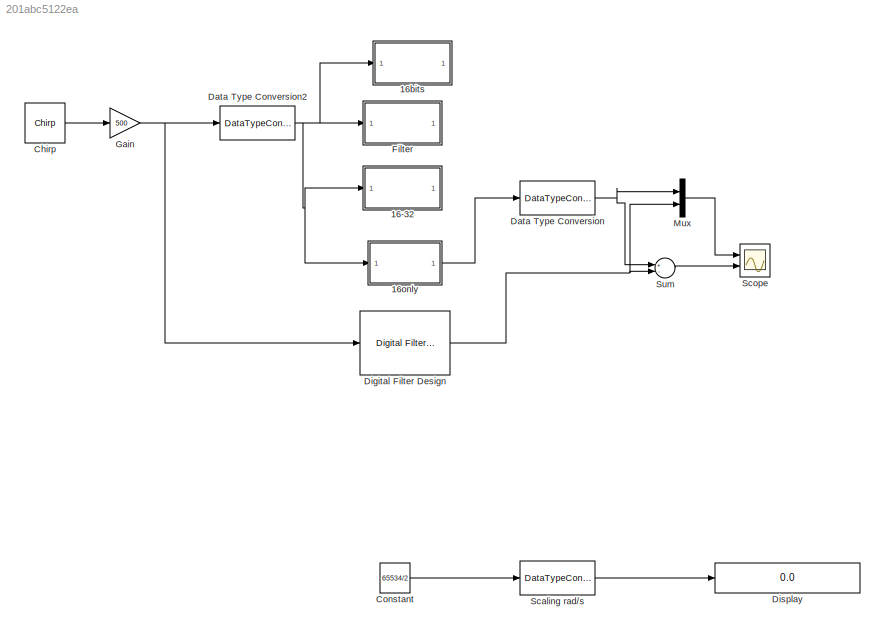
MODEL slx_201abc5122ea
KIND model
CONFIG AbsTol = auto
CONFIG EnableMultiTasking = on
CONFIG FixedStep = auto
CONFIG MaxStep = auto
CONFIG MinStep = auto
CONFIG RelTol = 1e-3
CONFIG SampleTimeConstraint = Unconstrained
CONFIG Solver = FixedStepAuto
CONFIG SolverName = FixedStepAuto
CONFIG StartTime = 0.0
CONFIG StopTime = 60
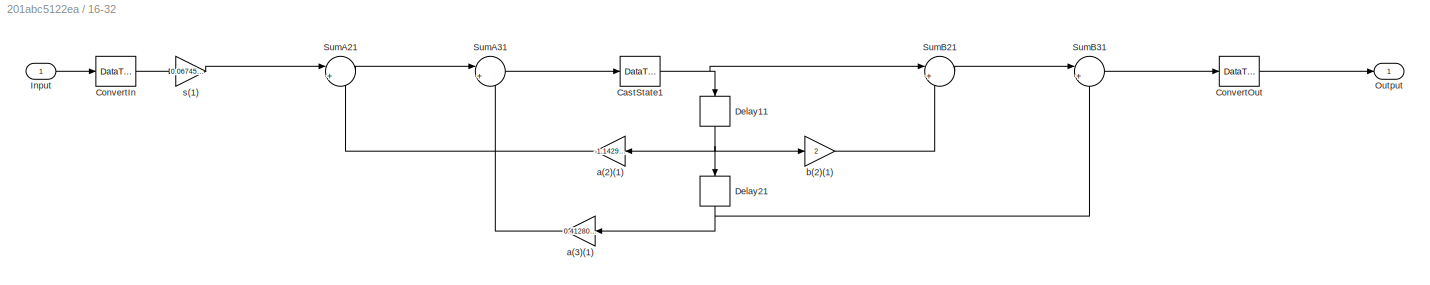
BLOCK [SubSystem] 16-32 
  Commented = on
  ErrorFcn = dspFilterRealizedInBasicElemsAlgLoopErrFcnCallback
  Ports = [1, 1]
  RequestExecContextInheritance = off
  Tag = FilterWizardSubSystem
  TreatAsAtomicUnit = on
  UserDataPersistent = on
  Variant = off
BLOCK [DataTypeConversion] 16-32 /CastState1
  OutDataTypeStr = fixdt(1,16,7)
  RndMeth = Floor
  SaturateOnIntegerOverflow = off
BLOCK [DataTypeConversion] 16-32 /ConvertIn
  OutDataTypeStr = fixdt(1,16,5)
  RndMeth = Nearest
BLOCK [DataTypeConversion] 16-32 /ConvertOut
  OutDataTypeStr = fixdt(1,16,5)
  RndMeth = Floor
  SaturateOnIntegerOverflow = off
BLOCK [Delay] 16-32 /Delay11
  DelayLength = 1
  InitialCondition = 0
  InputPortMap = u0
  Ports = [1, 1]
BLOCK [Delay] 16-32 /Delay21
  DelayLength = 1
  InitialCondition = 0
  InputPortMap = u0
  Ports = [1, 1]
BLOCK [Inport] 16-32 /Input
  IconDisplay = Port number
BLOCK [Outport] 16-32 /Output
  IconDisplay = Port number
BLOCK [Sum] 16-32 /SumA21
  AccumDataTypeStr = fixdt(1,34,25)
  IconShape = round
  InputSameDT = off
  Inputs = |+-
  OutDataTypeStr = fixdt(1,16,7)
  Ports = [2, 1]
  SaturateOnIntegerOverflow = off
BLOCK [Sum] 16-32 /SumA31
  AccumDataTypeStr = fixdt(1,34,25)
  IconShape = round
  InputSameDT = off
  Inputs = |+-
  OutDataTypeStr = fixdt(1,16,7)
  Ports = [2, 1]
  SaturateOnIntegerOverflow = off
BLOCK [Sum] 16-32 /SumB21
  AccumDataTypeStr = fixdt(1,34,24)
  IconShape = round
  InputSameDT = off
  Inputs = |++
  OutDataTypeStr = fixdt(1,16,6)
  Ports = [2, 1]
  SaturateOnIntegerOverflow = off
BLOCK [Sum] 16-32 /SumB31
  AccumDataTypeStr = fixdt(1,34,23)
  IconShape = round
  InputSameDT = off
  Inputs = |++
  OutDataTypeStr = fixdt(1,16,5)
  Ports = [2, 1]
  SaturateOnIntegerOverflow = off
BLOCK [Gain] 16-32 /a(2)(1)
  Gain = -1.14298050253990113
  OutDataTypeStr = fixdt(1,32,23)
  ParamDataTypeStr = fixdt(1,16,14)
  SaturateOnIntegerOverflow = off
BLOCK [Gain] 16-32 /a(3)(1)
  Gain = 0.412801598096188771
  OutDataTypeStr = fixdt(1,32,25)
  ParamDataTypeStr = fixdt(0,16,17)
  SaturateOnIntegerOverflow = off
BLOCK [Gain] 16-32 /b(2)(1)
  Gain = 2
  OutDataTypeStr = fixdt(1,32,22)
  ParamDataTypeStr = fixdt(0,16,14)
  SaturateOnIntegerOverflow = off
BLOCK [Gain] 16-32 /s(1)
  Gain = 0.0674552738890718956
  OutDataTypeStr = fixdt(1,16,9)
  ParamDataTypeStr = fixdt(0,16,19)
  SaturateOnIntegerOverflow = off
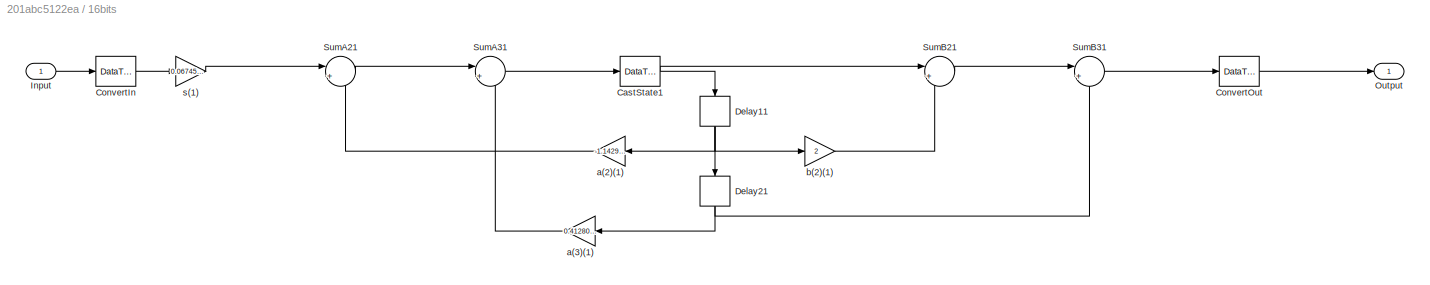
BLOCK [SubSystem] 16bits
  ErrorFcn = dspFilterRealizedInBasicElemsAlgLoopErrFcnCallback
  Ports = [1, 1]
  RequestExecContextInheritance = off
  Tag = FilterWizardSubSystem
  UserDataPersistent = on
  Variant = off
BLOCK [DataTypeConversion] 16bits/CastState1
  OutDataTypeStr = fixdt(1,16,6)
  RndMeth = Floor
  SaturateOnIntegerOverflow = off
BLOCK [DataTypeConversion] 16bits/ConvertIn
  OutDataTypeStr = fixdt(1,16,5)
  RndMeth = Nearest
BLOCK [DataTypeConversion] 16bits/ConvertOut
  OutDataTypeStr = fixdt(1,16,4)
  RndMeth = Floor
  SaturateOnIntegerOverflow = off
BLOCK [Delay] 16bits/Delay11
  DelayLength = 1
  InitialCondition = 0
  InputPortMap = u0
  Ports = [1, 1]
BLOCK [Delay] 16bits/Delay21
  DelayLength = 1
  InitialCondition = 0
  InputPortMap = u0
  Ports = [1, 1]
BLOCK [Inport] 16bits/Input
  IconDisplay = Port number
BLOCK [Outport] 16bits/Output
  IconDisplay = Port number
BLOCK [Sum] 16bits/SumA21
  AccumDataTypeStr = fixdt(1,34,24)
  IconShape = round
  InputSameDT = off
  Inputs = |+-
  OutDataTypeStr = fixdt(1,16,6)
  Ports = [2, 1]
  SaturateOnIntegerOverflow = off
BLOCK [Sum] 16bits/SumA31
  AccumDataTypeStr = fixdt(1,34,24)
  IconShape = round
  InputSameDT = off
  Inputs = |+-
  OutDataTypeStr = fixdt(1,16,6)
  Ports = [2, 1]
  SaturateOnIntegerOverflow = off
BLOCK [Sum] 16bits/SumB21
  AccumDataTypeStr = fixdt(1,34,23)
  IconShape = round
  InputSameDT = off
  Inputs = |++
  OutDataTypeStr = fixdt(1,16,5)
  Ports = [2, 1]
  SaturateOnIntegerOverflow = off
BLOCK [Sum] 16bits/SumB31
  AccumDataTypeStr = fixdt(1,34,22)
  IconShape = round
  InputSameDT = off
  Inputs = |++
  OutDataTypeStr = fixdt(1,16,4)
  Ports = [2, 1]
  SaturateOnIntegerOverflow = off
BLOCK [Gain] 16bits/a(2)(1)
  Gain = -1.14298050253990113
  OutDataTypeStr = fixdt(1,32,22)
  ParamDataTypeStr = fixdt(1,16,14)
  SaturateOnIntegerOverflow = off
BLOCK [Gain] 16bits/a(3)(1)
  Gain = 0.412801598096188771
  OutDataTypeStr = fixdt(1,32,24)
  ParamDataTypeStr = fixdt(0,16,17)
  SaturateOnIntegerOverflow = off
BLOCK [Gain] 16bits/b(2)(1)
  Gain = 2
  OutDataTypeStr = fixdt(1,32,21)
  ParamDataTypeStr = fixdt(0,16,14)
  SaturateOnIntegerOverflow = off
BLOCK [Gain] 16bits/s(1)
  Gain = 0.0674552738890718956
  OutDataTypeStr = fixdt(1,16,8)
  ParamDataTypeStr = fixdt(0,16,19)
  SaturateOnIntegerOverflow = off
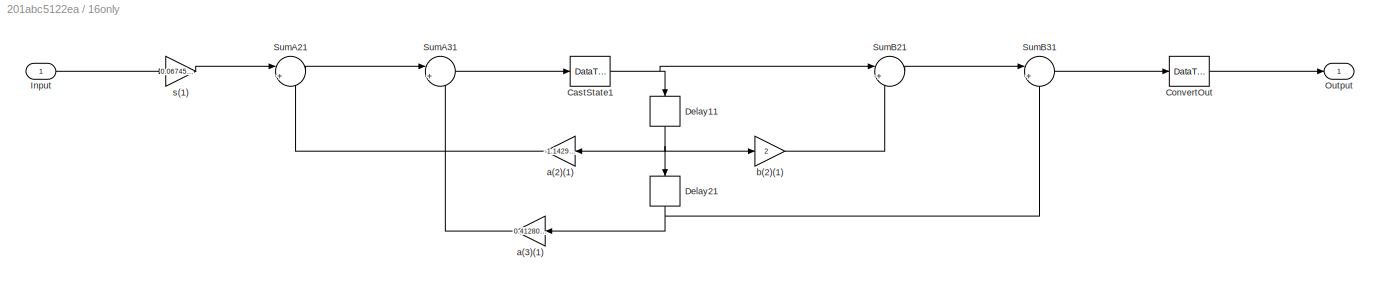
BLOCK [SubSystem] 16only 
  ErrorFcn = dspFilterRealizedInBasicElemsAlgLoopErrFcnCallback
  Ports = [1, 1]
  RequestExecContextInheritance = off
  Tag = FilterWizardSubSystem
  UserDataPersistent = on
  Variant = off
BLOCK [DataTypeConversion] 16only /CastState1
  OutDataTypeStr = fixdt(1,16,6)
  RndMeth = Floor
  SaturateOnIntegerOverflow = off
BLOCK [DataTypeConversion] 16only /ConvertOut
  OutDataTypeStr = fixdt(1,16,4)
  RndMeth = Floor
  SaturateOnIntegerOverflow = off
BLOCK [Delay] 16only /Delay11
  DelayLength = 1
  InitialCondition = 0
  InputPortMap = u0
  Ports = [1, 1]
BLOCK [Delay] 16only /Delay21
  DelayLength = 1
  InitialCondition = 0
  InputPortMap = u0
  Ports = [1, 1]
BLOCK [Inport] 16only /Input
  IconDisplay = Port number
BLOCK [Outport] 16only /Output
  IconDisplay = Port number
BLOCK [Sum] 16only /SumA21
  AccumDataTypeStr = fixdt(1,16,6)
  IconShape = round
  InputSameDT = off
  Inputs = |+-
  OutDataTypeStr = fixdt(1,16,6)
  Ports = [2, 1]
  SaturateOnIntegerOverflow = off
BLOCK [Sum] 16only /SumA31
  AccumDataTypeStr = fixdt(1,16,6)
  IconShape = round
  InputSameDT = off
  Inputs = |+-
  OutDataTypeStr = fixdt(1,16,6)
  Ports = [2, 1]
  SaturateOnIntegerOverflow = off
BLOCK [Sum] 16only /SumB21
  AccumDataTypeStr = fixdt(1,16,5)
  IconShape = round
  InputSameDT = off
  Inputs = |++
  OutDataTypeStr = fixdt(1,16,5)
  Ports = [2, 1]
  SaturateOnIntegerOverflow = off
BLOCK [Sum] 16only /SumB31
  AccumDataTypeStr = fixdt(1,16,4)
  IconShape = round
  InputSameDT = off
  Inputs = |++
  OutDataTypeStr = fixdt(1,16,4)
  Ports = [2, 1]
  SaturateOnIntegerOverflow = off
BLOCK [Gain] 16only /a(2)(1)
  Gain = -1.14298050253990113
  OutDataTypeStr = fixdt(1,16,6)
  ParamDataTypeStr = fixdt(1,16,14)
  SaturateOnIntegerOverflow = off
BLOCK [Gain] 16only /a(3)(1)
  Gain = 0.412801598096188771
  OutDataTypeStr = fixdt(1,16,8)
  ParamDataTypeStr = fixdt(0,16,17)
  SaturateOnIntegerOverflow = off
BLOCK [Gain] 16only /b(2)(1)
  Gain = 2
  OutDataTypeStr = fixdt(1,16,5)
  ParamDataTypeStr = fixdt(0,16,14)
  SaturateOnIntegerOverflow = off
BLOCK [Gain] 16only /s(1)
  Gain = 0.0674552738890718956
  OutDataTypeStr = fixdt(1,16,8)
  ParamDataTypeStr = fixdt(0,16,19)
  SaturateOnIntegerOverflow = off
BLOCK [Reference] Chirp  REF=dspsrcs4/Chirp
  Ports = [0, 1]
  SourceBlock = dspsrcs4/Chirp
  SourceProductBaseCode = DS
  SourceProductName = DSP System Toolbox
  SourceType = Chirp
BLOCK [Constant] Constant
  OutDataTypeStr = int16
  Value = 65534/2
BLOCK [DataTypeConversion] Data Type Conversion
  OutDataTypeStr = double
  RndMeth = Floor
  SaturateOnIntegerOverflow = off
BLOCK [DataTypeConversion] Data Type Conversion2
  OutDataTypeStr = fixdt(1,16,5)
  OutMax = [pi]
  OutMin = [0]
  RndMeth = Floor
  SaturateOnIntegerOverflow = off
BLOCK [Reference] Digital Filter Design  REF=dsparch4/Digital
Filter Design
  Ports = [1, 1]
  SourceBlock = dsparch4/Digital\nFilter Design
  SourceProductBaseCode = DS
  SourceProductName = DSP System Toolbox
  SourceType = Digital Filter Design
  UserDataPersistent = on
BLOCK [Display] Display
  Decimation = 1
  Ports = [1]
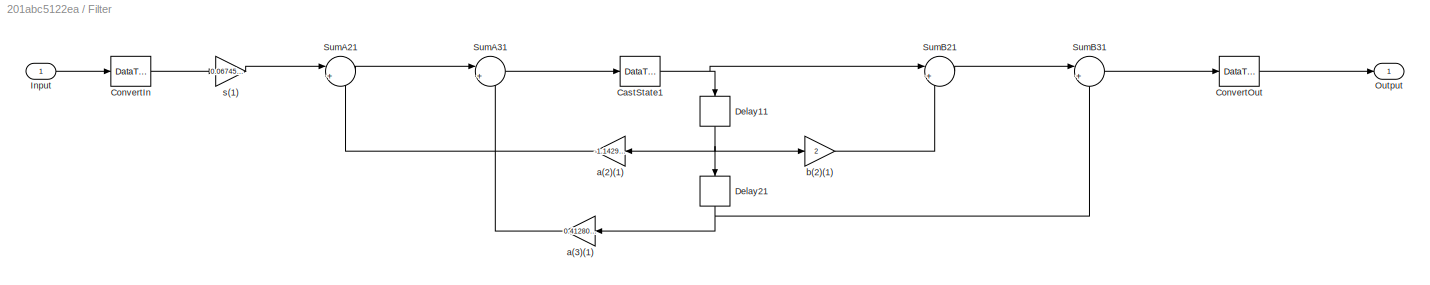
BLOCK [SubSystem] Filter
  Commented = on
  ErrorFcn = dspFilterRealizedInBasicElemsAlgLoopErrFcnCallback
  Ports = [1, 1]
  RequestExecContextInheritance = off
  Tag = FilterWizardSubSystem
  UserDataPersistent = on
  Variant = off
BLOCK [DataTypeConversion] Filter/CastState1
  OutDataTypeStr = fixdt(1,16,1)
  RndMeth = Floor
  SaturateOnIntegerOverflow = off
BLOCK [DataTypeConversion] Filter/ConvertIn
  OutDataTypeStr = fixdt(1,16,6)
  RndMeth = Nearest
BLOCK [DataTypeConversion] Filter/ConvertOut
  OutDataTypeStr = fixdt(1,16,5)
  RndMeth = Floor
  SaturateOnIntegerOverflow = off
BLOCK [Delay] Filter/Delay11
  DelayLength = 1
  InitialCondition = 0
  InputPortMap = u0
  Ports = [1, 1]
BLOCK [Delay] Filter/Delay21
  DelayLength = 1
  InitialCondition = 0
  InputPortMap = u0
  Ports = [1, 1]
BLOCK [Inport] Filter/Input
  IconDisplay = Port number
BLOCK [Outport] Filter/Output
  IconDisplay = Port number
BLOCK [Sum] Filter/SumA21
  AccumDataTypeStr = fixdt(1,34,16)
  IconShape = round
  InputSameDT = off
  Inputs = |+-
  OutDataTypeStr = fixdt(1,32,13)
  Ports = [2, 1]
  SaturateOnIntegerOverflow = off
BLOCK [Sum] Filter/SumA31
  AccumDataTypeStr = fixdt(1,34,16)
  IconShape = round
  InputSameDT = off
  Inputs = |+-
  OutDataTypeStr = fixdt(1,32,13)
  Ports = [2, 1]
  SaturateOnIntegerOverflow = off
BLOCK [Sum] Filter/SumB21
  AccumDataTypeStr = fixdt(1,34,16)
  IconShape = round
  InputSameDT = off
  Inputs = |++
  OutDataTypeStr = fixdt(1,32,12)
  Ports = [2, 1]
  SaturateOnIntegerOverflow = off
BLOCK [Sum] Filter/SumB31
  AccumDataTypeStr = fixdt(1,34,16)
  IconShape = round
  InputSameDT = off
  Inputs = |++
  OutDataTypeStr = fixdt(1,32,12)
  Ports = [2, 1]
  SaturateOnIntegerOverflow = off
BLOCK [Gain] Filter/a(2)(1)
  Gain = -1.14298050253990113
  OutDataTypeStr = fixdt(1,32,15)
  ParamDataTypeStr = fixdt(1,16,14)
  SaturateOnIntegerOverflow = off
BLOCK [Gain] Filter/a(3)(1)
  Gain = 0.412801598096188771
  OutDataTypeStr = fixdt(1,32,15)
  ParamDataTypeStr = fixdt(1,16,14)
  SaturateOnIntegerOverflow = off
BLOCK [Gain] Filter/b(2)(1)
  Gain = 2
  OutDataTypeStr = fixdt(1,32,14)
  ParamDataTypeStr = fixdt(1,16,13)
  SaturateOnIntegerOverflow = off
BLOCK [Gain] Filter/s(1)
  Gain = 0.0674552738890718956
  OutDataTypeStr = fixdt(1,16,7)
  ParamDataTypeStr = fixdt(1,16,18)
  SaturateOnIntegerOverflow = off
BLOCK [Gain] Gain
  Gain = 500
  ParamDataTypeStr = Inherit: Inherit via internal rule
  SaturateOnIntegerOverflow = off
BLOCK [Mux] Mux
  DisplayOption = bar
  Inputs = 2
  Ports = [2, 1]
BLOCK [DataTypeConversion] Scaling rad//s
  ConvertRealWorld = Stored Integer (SI)
  OutDataTypeStr = fixdt(1,16,2*pi/Lignes/TsQEI,0)
  OutMax = [pi]
  OutMin = [0]
  RndMeth = Floor
  SaturateOnIntegerOverflow = off
BLOCK [Scope] Scope
  NumInputPorts = 2
  Ports = [2]
  ScopeSpecificationString = Simulink.scopes.TimeScopeBlockCfg('CurrentConfiguration', extmgr.ConfigurationSet(extmgr.Configuration('Core','General UI',true),extmgr.Configuration('Core','Source UI',true),extmgr.Configuration('Sources','WiredSimulink',true),extmgr.Configuration('Visuals','Time Domain',true,'SerializedDisplays',{struct('MinYLimReal','-508.36913','MaxYLimReal','-252.31109','YLabelReal','','MinYLimMag',' 0.00000'...<+1999ch>
BLOCK [Sum] Sum
  InputSameDT = off
  Inputs = +-
  OutDataTypeStr = fixdt(1,16,4)
  Ports = [2, 1]
  SaturateOnIntegerOverflow = off
NET 16-32 /CastState1:1 -> 16-32 /Delay11:1, 16-32 /SumB21:1
LINE 16-32 /ConvertIn:1 -> 16-32 /s(1):1
LINE 16-32 /ConvertOut:1 -> 16-32 /Output:1
NET 16-32 /Delay11:1 -> 16-32 /Delay21:1, 16-32 /a(2)(1):1, 16-32 /b(2)(1):1
NET 16-32 /Delay21:1 -> 16-32 /SumB31:2, 16-32 /a(3)(1):1
LINE 16-32 /Input:1 -> 16-32 /ConvertIn:1
LINE 16-32 /SumA21:1 -> 16-32 /SumA31:1
LINE 16-32 /SumA31:1 -> 16-32 /CastState1:1
LINE 16-32 /SumB21:1 -> 16-32 /SumB31:1
LINE 16-32 /SumB31:1 -> 16-32 /ConvertOut:1
LINE 16-32 /a(2)(1):1 -> 16-32 /SumA21:2
LINE 16-32 /a(3)(1):1 -> 16-32 /SumA31:2
LINE 16-32 /b(2)(1):1 -> 16-32 /SumB21:2
LINE 16-32 /s(1):1 -> 16-32 /SumA21:1
NET 16bits/CastState1:1 -> 16bits/Delay11:1, 16bits/SumB21:1
LINE 16bits/ConvertIn:1 -> 16bits/s(1):1
LINE 16bits/ConvertOut:1 -> 16bits/Output:1
NET 16bits/Delay11:1 -> 16bits/Delay21:1, 16bits/a(2)(1):1, 16bits/b(2)(1):1
NET 16bits/Delay21:1 -> 16bits/SumB31:2, 16bits/a(3)(1):1
LINE 16bits/Input:1 -> 16bits/ConvertIn:1
LINE 16bits/SumA21:1 -> 16bits/SumA31:1
LINE 16bits/SumA31:1 -> 16bits/CastState1:1
LINE 16bits/SumB21:1 -> 16bits/SumB31:1
LINE 16bits/SumB31:1 -> 16bits/ConvertOut:1
LINE 16bits/a(2)(1):1 -> 16bits/SumA21:2
LINE 16bits/a(3)(1):1 -> 16bits/SumA31:2
LINE 16bits/b(2)(1):1 -> 16bits/SumB21:2
LINE 16bits/s(1):1 -> 16bits/SumA21:1
NET 16only /CastState1:1 -> 16only /Delay11:1, 16only /SumB21:1
LINE 16only /ConvertOut:1 -> 16only /Output:1
NET 16only /Delay11:1 -> 16only /Delay21:1, 16only /a(2)(1):1, 16only /b(2)(1):1
NET 16only /Delay21:1 -> 16only /SumB31:2, 16only /a(3)(1):1
LINE 16only /Input:1 -> 16only /s(1):1
LINE 16only /SumA21:1 -> 16only /SumA31:1
LINE 16only /SumA31:1 -> 16only /CastState1:1
LINE 16only /SumB21:1 -> 16only /SumB31:1
LINE 16only /SumB31:1 -> 16only /ConvertOut:1
LINE 16only /a(2)(1):1 -> 16only /SumA21:2
LINE 16only /a(3)(1):1 -> 16only /SumA31:2
LINE 16only /b(2)(1):1 -> 16only /SumB21:2
LINE 16only /s(1):1 -> 16only /SumA21:1
LINE 16only :1 -> Data Type Conversion:1
LINE Chirp:1 -> Gain:1
LINE Constant:1 -> Scaling rad//s:1
NET Data Type Conversion2:1 -> 16-32 :1, 16bits:1, 16only :1, Filter:1
NET Data Type Conversion:1 -> Mux:1, Sum:1
NET Digital Filter Design:1 -> Mux:2, Sum:2
NET Filter/CastState1:1 -> Filter/Delay11:1, Filter/SumB21:1
LINE Filter/ConvertIn:1 -> Filter/s(1):1
LINE Filter/ConvertOut:1 -> Filter/Output:1
NET Filter/Delay11:1 -> Filter/Delay21:1, Filter/a(2)(1):1, Filter/b(2)(1):1
NET Filter/Delay21:1 -> Filter/SumB31:2, Filter/a(3)(1):1
LINE Filter/Input:1 -> Filter/ConvertIn:1
LINE Filter/SumA21:1 -> Filter/SumA31:1
LINE Filter/SumA31:1 -> Filter/CastState1:1
LINE Filter/SumB21:1 -> Filter/SumB31:1
LINE Filter/SumB31:1 -> Filter/ConvertOut:1
LINE Filter/a(2)(1):1 -> Filter/SumA21:2
LINE Filter/a(3)(1):1 -> Filter/SumA31:2
LINE Filter/b(2)(1):1 -> Filter/SumB21:2
LINE Filter/s(1):1 -> Filter/SumA21:1
NET Gain:1 -> Data Type Conversion2:1, Digital Filter Design:1
LINE Mux:1 -> Scope:1
LINE Scaling rad//s:1 -> Display:1
LINE Sum:1 -> Scope:2
note: NET lines group one-source signal fan-out (src -> all destinations, sorted); 1:1 wires keep LINE
